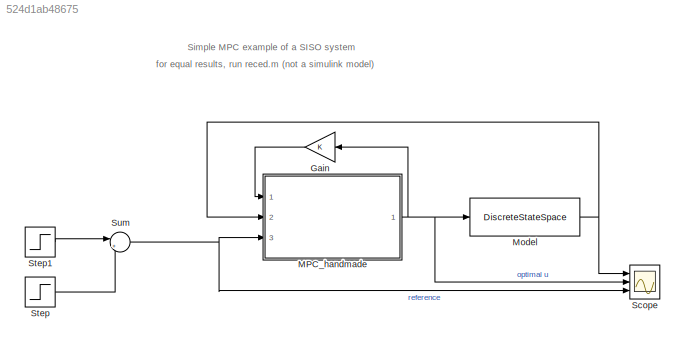
MODEL slx_524d1ab48675
KIND model
CONFIG AbsTol = auto
CONFIG EnableMultiTasking = off
CONFIG FixedStep = 0.05
CONFIG MaxStep = auto
CONFIG MinStep = auto
CONFIG RelTol = 1e-3
CONFIG SampleTimeConstraint = Unconstrained
CONFIG SolverName = FixedStepDiscrete
CONFIG StartTime = 0.0
CONFIG StopTime = 10.0
BLOCK [Gain] Gain
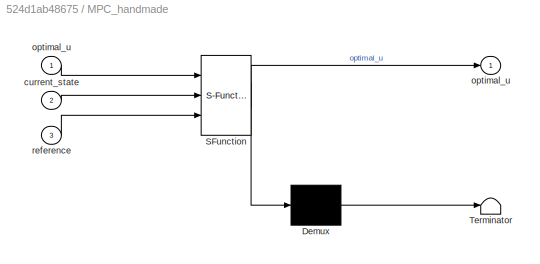
BLOCK [SubSystem] MPC_handmade
  ErrorFcn = Stateflow.Translate.translate
  PermitHierarchicalResolution = ExplicitOnly
  Ports = [3, 1]
  RequestExecContextInheritance = off
  SFBlockType = MATLAB Function
  TreatAsAtomicUnit = on
BLOCK [Demux] MPC_handmade/ Demux 
  Outputs = 1
  Ports = [1, 1]
BLOCK [S-Function] MPC_handmade/ SFunction 
  EnableBusSupport = on
  FunctionName = sf_sfun
  PortCounts = [3 2]
  Ports = [3, 2]
  SFcnIsStateOwnerBlock = off
  SFunctionDeploymentMode = off
  Tag = Stateflow S-Function 2
BLOCK [Terminator] MPC_handmade/ Terminator 
BLOCK [Inport] MPC_handmade/current_state
  Port = 2
BLOCK [Outport] MPC_handmade/optimal_u
BLOCK [Inport] MPC_handmade/optimal_u 
BLOCK [Inport] MPC_handmade/reference
  Port = 3
BLOCK [DiscreteStateSpace] Model
  A = [1 1;0 1]
  B = [0.5;1]
  C = [1 0;0 1]
  D = zeros(2,1)
  InitialCondition = [0 0]
  SampleTime = -1
BLOCK [Scope] Scope
  Floating = off
  NumInputPorts = 3
  Ports = [3]
  ScopeSpecificationString = Simulink.scopes.TimeScopeBlockCfg('CurrentConfiguration', extmgr.ConfigurationSet(extmgr.Configuration('Core','General UI',true),extmgr.Configuration('Core','Source UI',true),extmgr.Configuration('Sources','WiredSimulink',true),extmgr.Configuration('Visuals','Time Domain',true,'SerializedDisplays',{struct('MinYLimReal','-0.21454','MaxYLimReal','1.17848','YLabelReal','','MinYLimMag','0.00000','MaxY...<+1530ch>
BLOCK [Step] Step
  SampleTime = 0
  Time = 2
BLOCK [Step] Step1
  After = 0
  SampleTime = 0
  Time = 5
BLOCK [Sum] Sum
  Inputs = |++
  Ports = [2, 1]
ANNOTATION (root): for equal results, run reced.m (not a simulink model)
ANNOTATION (root): Simple MPC example of a SISO system
LINE Gain:1 -> MPC_handmade:1
NET MPC_handmade:1 -> Gain:1, Model:1, Scope:2
NET Model:1 -> MPC_handmade:2, Scope:1
LINE Step1:1 -> Sum:1
LINE Step:1 -> Sum:2
NET Sum:1 -> MPC_handmade:3, Scope:3
note: NET lines group one-source signal fan-out (src -> all destinations, sorted); 1:1 wires keep LINE
CHART MPC_handmade states=1 transitions=1
  STATE_LABEL 'eML_blk_kernel()'
  STATE_LABEL 'SCRIPT:\nfunction optimal_u = MPC_handmade(optimal_u,current_state,reference)\nAp = [1 1 ; 0 1];\nBp = [0.5;1];\nCp = eye(2);\nDp  = zeros(2,1);\nNp = 20;\nNc = 4;\n% persistent u_next\n% if isempty(u_next)\n%     u_next = 0;\n% end\n% MPC gains %%%%%%%%%%%%%%\n[m1,n1] = size(Cp);\n[n1,n_in] = size(Bp);\nA_e = eye(n1+m1,n1+m1);\nA_e(1:n1,1:n1) = Ap;\nA_e(n1+1:n1+m1,1:n1) = Cp*Ap;\nB_e = zeros(n1+m1,n_in);\nB_e(1:n1,...<+994ch>'
CHART  states=0 transitions=0
